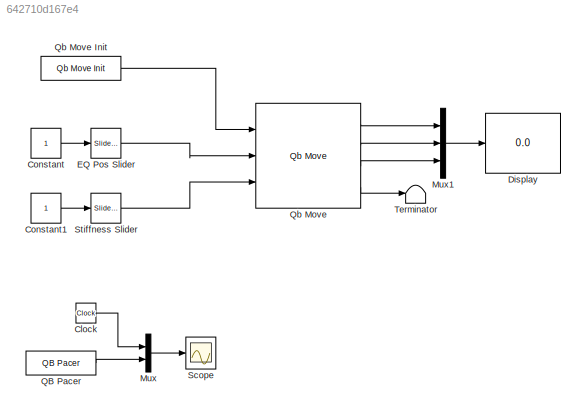
MODEL slx_642710d167e4
KIND model
BLOCK [Clock] Clock
BLOCK [Constant] Constant
BLOCK [Constant] Constant1
BLOCK [Display] Display
  Decimation = 1
  Lockdown = off
  Ports = [1]
BLOCK [Reference] EQ Pos Slider   REF=simulink/Math
Operations/Slider
Gain
  Ports = [1, 1]
  SourceBlock = simulink/Math\nOperations/Slider\nGain
  SourceType = Slider Gain
  gain = 0
  high = 180
  low = -180
BLOCK [Mux] Mux
  DisplayOption = bar
  Inputs = 2
  Ports = [2, 1]
BLOCK [Mux] Mux1
  DisplayOption = bar
  Inputs = 3
  Ports = [3, 1]
BLOCK [Reference] QB Pacer  REF=QB_pacer_lib/QB Pacer
  Ports = [0, 1]
  SourceBlock = QB_pacer_lib/QB Pacer
  SourceType = RealTime_Pacer
  simTimePerRealTime = 1
BLOCK [Reference] Qb Move  REF=qbmove_library/Qb Move
  ACTIVE_COMM_DIRECTIONS = Both
  CONTROL_MODE = Equilibrium Position and Stiffness Preset
  DAISY_CHAINING = off
  ID = 3
  MAX_ANG = 0
  OFFSET = 0
  Ports = [3, 4]
  SW_LIMIT = inf
  SourceBlock = qbmove_library/Qb Move
  SourceType = qb move
BLOCK [Reference] Qb Move Init  REF=qbmove_library/Qb Move Init
  BAUD_RATE_COM = 115200
  NUMBER_OF_COM = 'COM1'
  Ports = [0, 1]
  SourceBlock = qbmove_library/Qb Move Init
  SourceType = qb Init - ISS
BLOCK [Scope] Scope
  DataFormat = StructureWithTime
  Floating = off
  NumInputPorts = 1
  Ports = [1]
  SampleTime = 0
  ShowLegends = off
  YMax = 5.5
  YMin = 0
BLOCK [Reference] Stiffness Slider  REF=simulink/Math
Operations/Slider
Gain
  Ports = [1, 1]
  SourceBlock = simulink/Math\nOperations/Slider\nGain
  SourceType = Slider Gain
  gain = 0
  high = 35
  low = 0
BLOCK [Terminator] Terminator
LINE Clock:1 -> Mux:1
LINE Constant1:1 -> Stiffness Slider:1
LINE Constant:1 -> EQ Pos Slider :1
LINE EQ Pos Slider :1 -> Qb Move:2
LINE Mux1:1 -> Display:1
LINE Mux:1 -> Scope:1
LINE QB Pacer:1 -> Mux:2
LINE Qb Move Init:1 -> Qb Move:1
LINE Qb Move:1 -> Mux1:1
LINE Qb Move:2 -> Mux1:2
LINE Qb Move:3 -> Mux1:3
LINE Qb Move:4 -> Terminator:1
LINE Stiffness Slider:1 -> Qb Move:3
